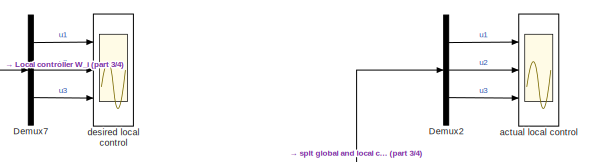
[diagram: root canvas - part 1/4, top center region]
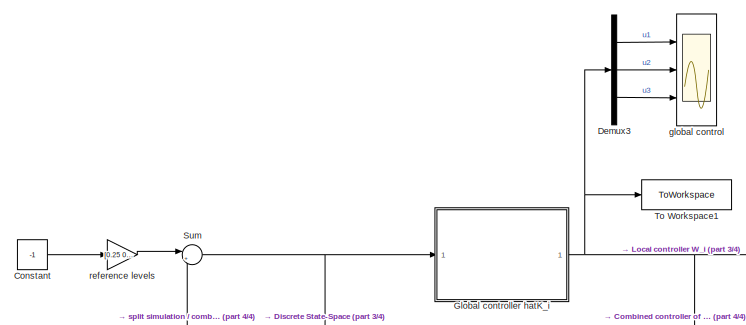
[diagram: root canvas - part 2/4, top left region]
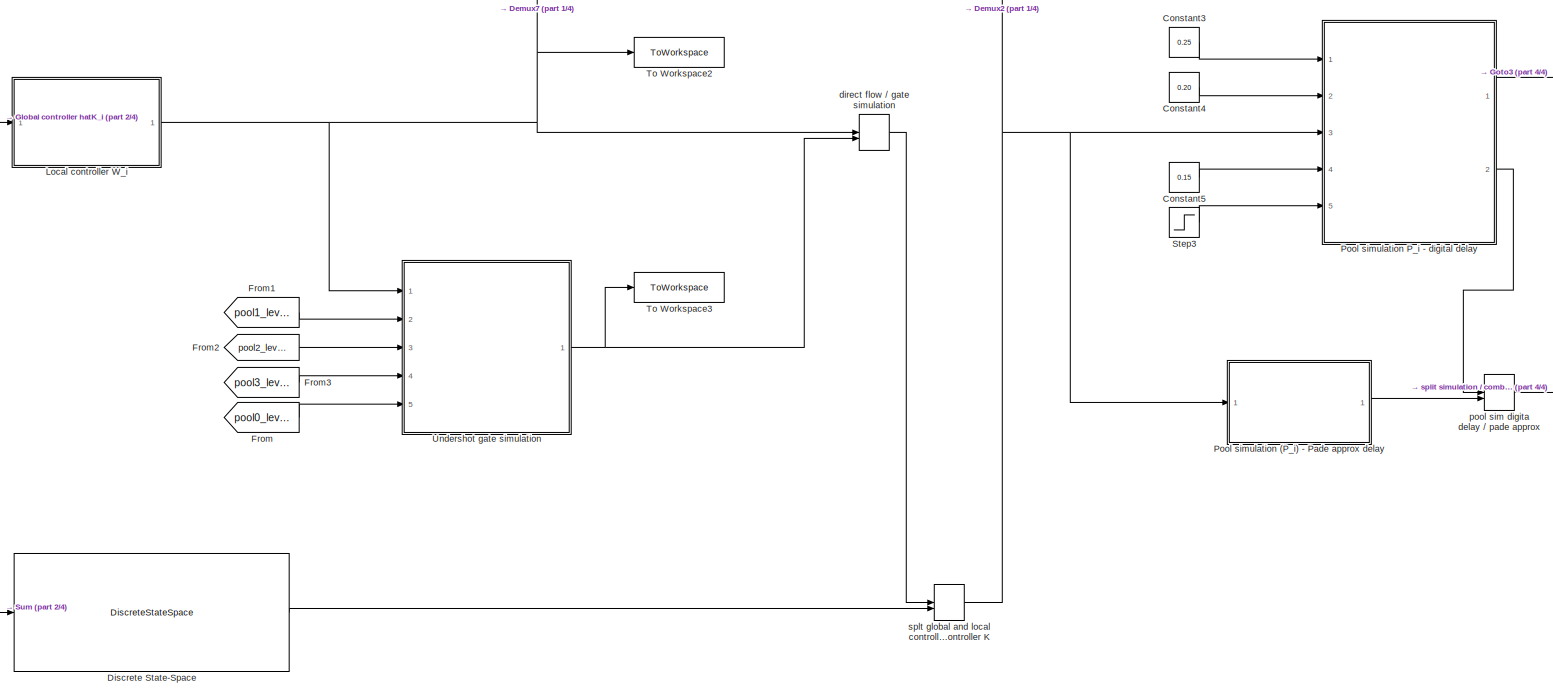
[diagram: root canvas - part 3/4, central region]
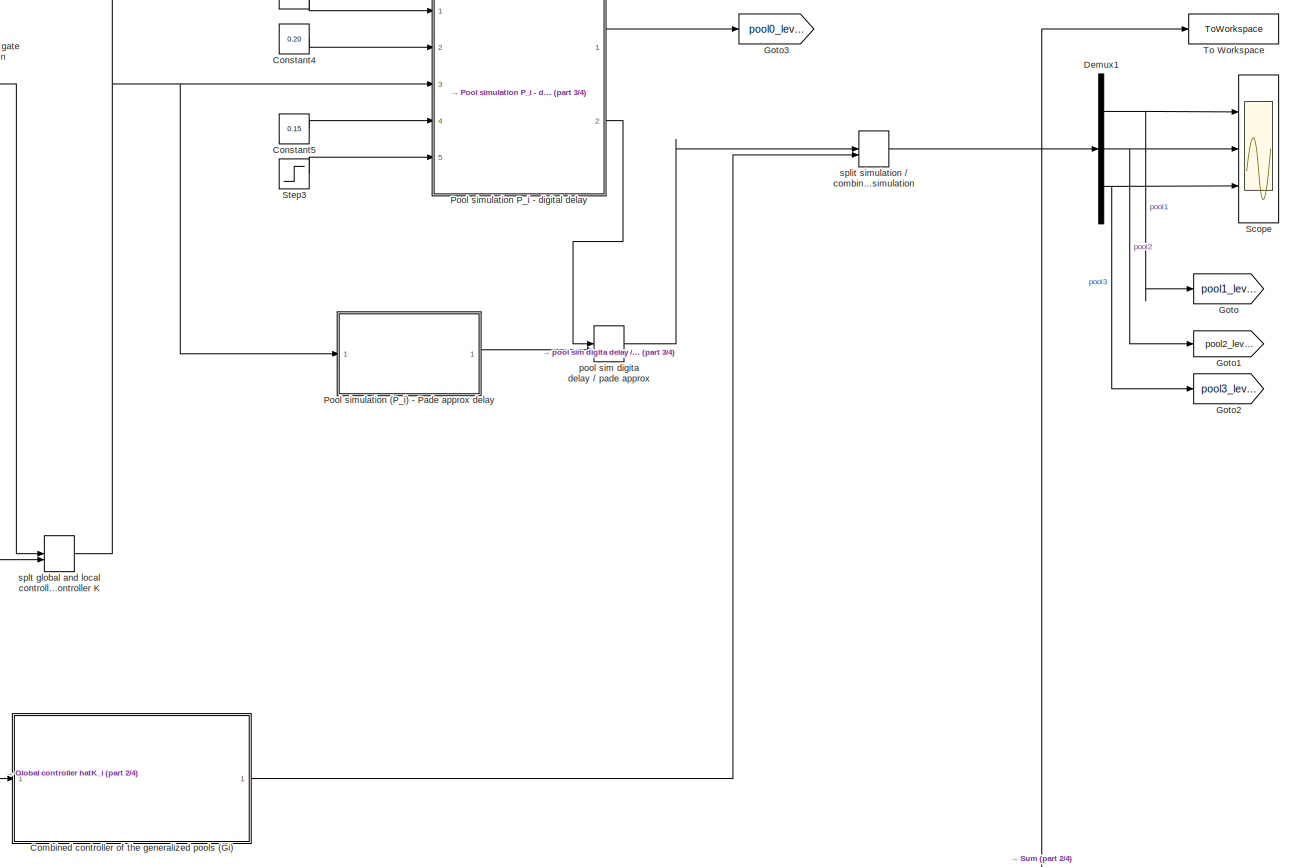
[diagram: root canvas - part 4/4, middle right region]
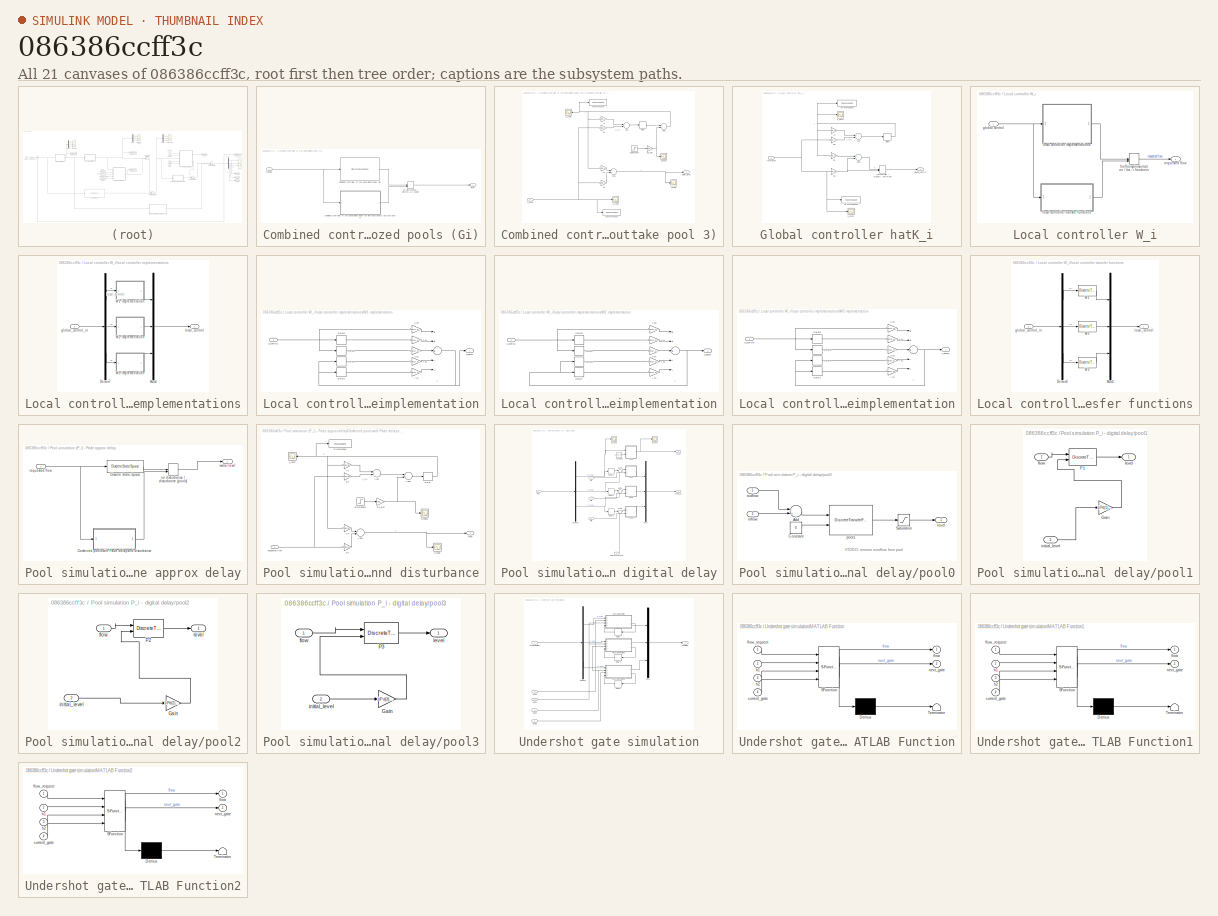
[diagram: thumbnail index - all 21 canvases of the model, root first then tree order]
MODEL slx_086386ccff3c
KIND model
CONFIG AbsTol = auto
CONFIG EnableMultiTasking = off
CONFIG FixedStep = 1
CONFIG MaxStep = auto
CONFIG MinStep = auto
CONFIG RelTol = 1e-3
CONFIG SampleTimeConstraint = Unconstrained
CONFIG Solver = FixedStepDiscrete
CONFIG SolverName = FixedStepDiscrete
CONFIG StartTime = 0.0
CONFIG StopTime = 60*30
BLOCK [SubSystem] Combined controller of the generalized pools (Gi)
  Ports = [1, 1]
  RequestExecContextInheritance = off
BLOCK [DiscreteStateSpace] Combined controller of the generalized pools (Gi)/Combined controller of the generalized pools (Gi)
  A = comb_plant_disc.A
  B = comb_plant_disc.B
  C = comb_plant_disc.C
  D = comb_plant_disc.D
  SampleTime = -1
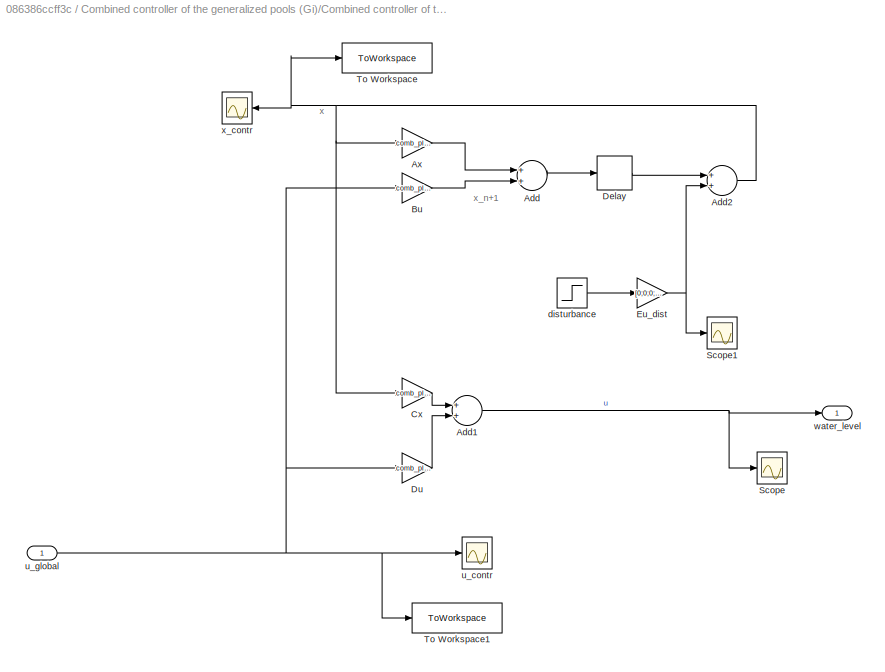
BLOCK [SubSystem] Combined controller of the generalized pools (Gi)/Combined controller of the generalized pools (Gi) with disturbance (outtake pool 3)
  Ports = [1, 1]
  RequestExecContextInheritance = off
BLOCK [Sum] Combined controller of the generalized pools (Gi)/Combined controller of the generalized pools (Gi) with disturbance (outtake pool 3)/Add
  InputSameDT = off
  OutDataTypeStr = Inherit: Inherit via internal rule
  Ports = [2, 1]
  SaturateOnIntegerOverflow = off
BLOCK [Sum] Combined controller of the generalized pools (Gi)/Combined controller of the generalized pools (Gi) with disturbance (outtake pool 3)/Add1
  InputSameDT = off
  OutDataTypeStr = Inherit: Inherit via internal rule
  Ports = [2, 1]
  SaturateOnIntegerOverflow = off
BLOCK [Sum] Combined controller of the generalized pools (Gi)/Combined controller of the generalized pools (Gi) with disturbance (outtake pool 3)/Add2
  InputSameDT = off
  OutDataTypeStr = Inherit: Inherit via internal rule
  Ports = [2, 1]
  SaturateOnIntegerOverflow = off
BLOCK [Gain] Combined controller of the generalized pools (Gi)/Combined controller of the generalized pools (Gi) with disturbance (outtake pool 3)/Ax
  Gain = comb_plant_disc.A
  Multiplication = Matrix(K*u)
  OutDataTypeStr = Inherit: Inherit via internal rule
  ParamDataTypeStr = Inherit: Inherit via internal rule
  SaturateOnIntegerOverflow = off
BLOCK [Gain] Combined controller of the generalized pools (Gi)/Combined controller of the generalized pools (Gi) with disturbance (outtake pool 3)/Bu
  Gain = comb_plant_disc.B
  Multiplication = Matrix(K*u)
  OutDataTypeStr = Inherit: Inherit via internal rule
  ParamDataTypeStr = Inherit: Inherit via internal rule
  SaturateOnIntegerOverflow = off
BLOCK [Gain] Combined controller of the generalized pools (Gi)/Combined controller of the generalized pools (Gi) with disturbance (outtake pool 3)/Cx
  Gain = comb_plant_disc.C
  Multiplication = Matrix(K*u)
  OutDataTypeStr = Inherit: Inherit via internal rule
  ParamDataTypeStr = Inherit: Inherit via internal rule
  SaturateOnIntegerOverflow = off
BLOCK [Delay] Combined controller of the generalized pools (Gi)/Combined controller of the generalized pools (Gi) with disturbance (outtake pool 3)/Delay
  DelayLength = 1
  InitialCondition = [0.25;0;0;0;0.20;0;0;0;0.15;0;0;0]
  InputPortMap = u0
  Ports = [1, 1]
BLOCK [Gain] Combined controller of the generalized pools (Gi)/Combined controller of the generalized pools (Gi) with disturbance (outtake pool 3)/Du
  Gain = comb_plant_disc.D
  Multiplication = Matrix(K*u)
  OutDataTypeStr = Inherit: Inherit via internal rule
  ParamDataTypeStr = Inherit: Inherit via internal rule
  SaturateOnIntegerOverflow = off
BLOCK [Gain] Combined controller of the generalized pools (Gi)/Combined controller of the generalized pools (Gi) with disturbance (outtake pool 3)/Eu_dist
  Gain = [0;0;0;0; 0;0;0;0; 1; 0; 0; 0];
  Multiplication = Matrix(K*u)
  OutDataTypeStr = Inherit: Inherit via internal rule
  ParamDataTypeStr = Inherit: Inherit via internal rule
  SaturateOnIntegerOverflow = off
BLOCK [Scope] Combined controller of the generalized pools (Gi)/Combined controller of the generalized pools (Gi) with disturbance (outtake pool 3)/Scope
  Floating = off
  NumInputPorts = 1
  Ports = [1]
  ScopeSpecificationString = Simulink.scopes.TimeScopeBlockCfg('CurrentConfiguration', extmgr.ConfigurationSet(extmgr.Configuration('Core','General UI',true),extmgr.Configuration('Core','Source UI',true),extmgr.Configuration('Sources','WiredSimulink',true,'DataLoggingVariableName','ScopeData1'),extmgr.Configuration('Visuals','Time Domain',true,'SerializedDisplays',{struct('MinYLimReal','0.12123','MaxYLimReal','0.26431','YLabe...<+1470ch>
BLOCK [Scope] Combined controller of the generalized pools (Gi)/Combined controller of the generalized pools (Gi) with disturbance (outtake pool 3)/Scope1
  Floating = off
  NumInputPorts = 1
  Ports = [1]
  ScopeSpecificationString = Simulink.scopes.TimeScopeBlockCfg('CurrentConfiguration', extmgr.ConfigurationSet(extmgr.Configuration('Core','General UI',true),extmgr.Configuration('Core','Source UI',true),extmgr.Configuration('Sources','WiredSimulink',true,'DataLoggingVariableName','ScopeData1'),extmgr.Configuration('Visuals','Time Domain',true,'SerializedDisplays',{struct('MinYLimReal','-0.00123','MaxYLimReal','0.00014','YLab...<+1504ch>
BLOCK [ToWorkspace] Combined controller of the generalized pools (Gi)/Combined controller of the generalized pools (Gi) with disturbance (outtake pool 3)/To Workspace
  FixptAsFi = on
  MaxDataPoints = inf
  Ports = [1]
  SampleTime = -1
  SaveFormat = Timeseries
  VariableName = x_combined
BLOCK [ToWorkspace] Combined controller of the generalized pools (Gi)/Combined controller of the generalized pools (Gi) with disturbance (outtake pool 3)/To Workspace1
  FixptAsFi = on
  MaxDataPoints = inf
  Ports = [1]
  SampleTime = -1
  SaveFormat = Timeseries
  VariableName = u_combined
BLOCK [Step] Combined controller of the generalized pools (Gi)/Combined controller of the generalized pools (Gi) with disturbance (outtake pool 3)/disturbance
  After = -0.015/0.2279* 1/60
  SampleTime = 0
  Time = 100
BLOCK [Scope] Combined controller of the generalized pools (Gi)/Combined controller of the generalized pools (Gi) with disturbance (outtake pool 3)/u_contr
  Floating = off
  NumInputPorts = 1
  Ports = [1]
  ScopeSpecificationString = Simulink.scopes.TimeScopeBlockCfg('CurrentConfiguration', extmgr.ConfigurationSet(extmgr.Configuration('Core','General UI',true),extmgr.Configuration('Core','Source UI',true),extmgr.Configuration('Sources','WiredSimulink',true,'DataLoggingVariableName','ScopeData2'),extmgr.Configuration('Visuals','Time Domain',true,'SerializedDisplays',{struct('MinYLimReal','-0.22587','MaxYLimReal','-0.14109','YLa...<+1448ch>
BLOCK [Inport] Combined controller of the generalized pools (Gi)/Combined controller of the generalized pools (Gi) with disturbance (outtake pool 3)/u_global
  IconDisplay = Port number
BLOCK [Outport] Combined controller of the generalized pools (Gi)/Combined controller of the generalized pools (Gi) with disturbance (outtake pool 3)/water_level
  IconDisplay = Port number
BLOCK [Scope] Combined controller of the generalized pools (Gi)/Combined controller of the generalized pools (Gi) with disturbance (outtake pool 3)/x_contr
  Floating = off
  NumInputPorts = 1
  Ports = [1]
  ScopeSpecificationString = Simulink.scopes.TimeScopeBlockCfg('CurrentConfiguration', extmgr.ConfigurationSet(extmgr.Configuration('Core','General UI',true),extmgr.Configuration('Core','Source UI',true),extmgr.Configuration('Sources','WiredSimulink',true,'DataLoggingVariableName','ScopeData1'),extmgr.Configuration('Visuals','Time Domain',true,'SerializedDisplays',{struct('MinYLimReal','-1.45192','MaxYLimReal','0.51843','YLab...<+1509ch>
BLOCK [Outport] Combined controller of the generalized pools (Gi)/level
  IconDisplay = Port number
BLOCK [ManualSwitch] Combined controller of the generalized pools (Gi)/no disturbance // disturbance (combined local + pools)
  CurrentSetting = 0
BLOCK [Inport] Combined controller of the generalized pools (Gi)/u_global
  IconDisplay = Port number
BLOCK [Constant] Constant
  Value = -1
BLOCK [Constant] Constant3
  SampleTime = -1
  Value = 0.25
BLOCK [Constant] Constant4
  Value = 0.20
BLOCK [Constant] Constant5
  Value = 0.15
BLOCK [Demux] Demux1
  DisplayOption = bar
  Outputs = 3
  Ports = [1, 3]
BLOCK [Demux] Demux2
  DisplayOption = bar
  Outputs = 3
  Ports = [1, 3]
BLOCK [Demux] Demux3
  DisplayOption = bar
  Outputs = 3
  Ports = [1, 3]
BLOCK [Demux] Demux7
  DisplayOption = bar
  Outputs = 3
  Ports = [1, 3]
BLOCK [DiscreteStateSpace] Discrete State-Space
  A = comb_K_disc.A
  B = comb_K_disc.B
  C = comb_K_disc.C
  D = comb_K_disc.D
  SampleTime = -1
BLOCK [From] From
  GotoTag = pool0_level
BLOCK [From] From1
  GotoTag = pool1_level
BLOCK [From] From2
  GotoTag = pool2_level
BLOCK [From] From3
  GotoTag = pool3_level
BLOCK [SubSystem] Global controller hatK_i
  Ports = [1, 1]
  RequestExecContextInheritance = off
BLOCK [Sum] Global controller hatK_i/Add
  InputSameDT = off
  OutDataTypeStr = Inherit: Inherit via internal rule
  Ports = [2, 1]
  SaturateOnIntegerOverflow = off
BLOCK [Sum] Global controller hatK_i/Add1
  InputSameDT = off
  OutDataTypeStr = Inherit: Inherit via internal rule
  Ports = [2, 1]
  SaturateOnIntegerOverflow = off
BLOCK [Gain] Global controller hatK_i/Ax
  Gain = comb_contr.A
  Multiplication = Matrix(K*u)
  OutDataTypeStr = Inherit: Inherit via internal rule
  ParamDataTypeStr = Inherit: Inherit via internal rule
  SaturateOnIntegerOverflow = off
BLOCK [Gain] Global controller hatK_i/Bu
  Gain = comb_contr.B
  Multiplication = Matrix(K*u)
  OutDataTypeStr = Inherit: Inherit via internal rule
  ParamDataTypeStr = Inherit: Inherit via internal rule
  SaturateOnIntegerOverflow = off
BLOCK [Gain] Global controller hatK_i/Cx
  Gain = comb_contr.C
  Multiplication = Matrix(K*u)
  OutDataTypeStr = Inherit: Inherit via internal rule
  ParamDataTypeStr = Inherit: Inherit via internal rule
  SaturateOnIntegerOverflow = off
BLOCK [Delay] Global controller hatK_i/Delay
  DelayLength = 1
  InitialCondition = [0;0;0;0;0;0;0;0;0;0;0;0;0;0;0]
  InputPortMap = u0
  Ports = [1, 1]
BLOCK [Gain] Global controller hatK_i/Du
  Gain = comb_contr.D
  Multiplication = Matrix(K*u)
  OutDataTypeStr = Inherit: Inherit via internal rule
  ParamDataTypeStr = Inherit: Inherit via internal rule
  SaturateOnIntegerOverflow = off
BLOCK [ToWorkspace] Global controller hatK_i/To Workspace
  FixptAsFi = on
  MaxDataPoints = inf
  Ports = [1]
  SampleTime = -1
  SaveFormat = Timeseries
  VariableName = x_global_control
BLOCK [ToWorkspace] Global controller hatK_i/To Workspace1
  FixptAsFi = on
  MaxDataPoints = inf
  Ports = [1]
  SampleTime = -1
  SaveFormat = Timeseries
  VariableName = u_global_control
BLOCK [ManualSwitch] Global controller hatK_i/full controller // proportional control only
  CurrentSetting = 0
BLOCK [Outport] Global controller hatK_i/global_control
  IconDisplay = Port number
BLOCK [Inport] Global controller hatK_i/reference
  IconDisplay = Port number
BLOCK [Scope] Global controller hatK_i/u_contr
  Floating = off
  NumInputPorts = 1
  Ports = [1]
  ScopeSpecificationString = Simulink.scopes.TimeScopeBlockCfg('CurrentConfiguration', extmgr.ConfigurationSet(extmgr.Configuration('Core','General UI',true),extmgr.Configuration('Core','Source UI',true),extmgr.Configuration('Sources','WiredSimulink',true,'DataLoggingVariableName','ScopeData2'),extmgr.Configuration('Visuals','Time Domain',true,'SerializedDisplays',{struct('MinYLimReal','-0.22587','MaxYLimReal','-0.14109','YLa...<+1430ch>
BLOCK [Scope] Global controller hatK_i/x_contr
  Floating = off
  NumInputPorts = 1
  Ports = [1]
  ScopeSpecificationString = Simulink.scopes.TimeScopeBlockCfg('CurrentConfiguration', extmgr.ConfigurationSet(extmgr.Configuration('Core','General UI',true),extmgr.Configuration('Core','Source UI',true),extmgr.Configuration('Sources','WiredSimulink',true,'DataLoggingVariableName','ScopeData1'),extmgr.Configuration('Visuals','Time Domain',true,'SerializedDisplays',{struct('MinYLimReal','-0.0000000000000008','MaxYLimReal','0.0...<+1630ch>
BLOCK [Goto] Goto
  GotoTag = pool1_level
BLOCK [Goto] Goto1
  GotoTag = pool2_level
BLOCK [Goto] Goto2
  GotoTag = pool3_level
BLOCK [Goto] Goto3
  GotoTag = pool0_level
BLOCK [SubSystem] Local controller W_i
  Ports = [1, 1]
  RequestExecContextInheritance = off
BLOCK [ManualSwitch] Local controller W_i/firefly implementation // transfer functions
  CurrentSetting = 0
BLOCK [Inport] Local controller W_i/global control
  IconDisplay = Port number
BLOCK [SubSystem] Local controller W_i/local controller implementations
  Ports = [1, 1]
  RequestExecContextInheritance = off
BLOCK [Demux] Local controller W_i/local controller implementations/Demux7
  DisplayOption = bar
  Outputs = 3
  Ports = [1, 3]
BLOCK [Mux] Local controller W_i/local controller implementations/Mux4
  DisplayOption = bar
  Inputs = 3
  Ports = [3, 1]
BLOCK [SubSystem] Local controller W_i/local controller implementations/W1 implementation
  Ports = [1, 1]
  RequestExecContextInheritance = off
BLOCK [Delay] Local controller W_i/local controller implementations/W1 implementation/Delay5
  DelayLength = 1
  InputPortMap = u0
  Ports = [1, 1]
BLOCK [Delay] Local controller W_i/local controller implementations/W1 implementation/Delay6
  InputPortMap = u0
  Ports = [1, 1]
BLOCK [Delay] Local controller W_i/local controller implementations/W1 implementation/Delay7
  InputPortMap = u0
  Ports = [1, 1]
BLOCK [Delay] Local controller W_i/local controller implementations/W1 implementation/Delay9
  DelayLength = 1
  InputPortMap = u0
  Ports = [1, 1]
BLOCK [Gain] Local controller W_i/local controller implementations/W1 implementation/u z0
  Gain = Wd{1}.Numerator{1}(1)
  OutDataTypeStr = Inherit: Inherit via internal rule
  ParamDataTypeStr = Inherit: Inherit via internal rule
  SaturateOnIntegerOverflow = off
BLOCK [Gain] Local controller W_i/local controller implementations/W1 implementation/u z1
  Gain = Wd{1}.Numerator{1}(2)
  OutDataTypeStr = Inherit: Inherit via internal rule
  ParamDataTypeStr = Inherit: Inherit via internal rule
  SaturateOnIntegerOverflow = off
BLOCK [Gain] Local controller W_i/local controller implementations/W1 implementation/u z2
  Gain = Wd{1}.Numerator{1}(3)
  OutDataTypeStr = Inherit: Inherit via internal rule
  ParamDataTypeStr = Inherit: Inherit via internal rule
  SaturateOnIntegerOverflow = off
BLOCK [Inport] Local controller W_i/local controller implementations/W1 implementation/u_control1
  IconDisplay = Port number
BLOCK [Outport] Local controller W_i/local controller implementations/W1 implementation/u_gate1
  IconDisplay = Port number
BLOCK [Sum] Local controller W_i/local controller implementations/W1 implementation/y
  InputSameDT = off
  Inputs = +++--
  OutDataTypeStr = Inherit: Inherit via internal rule
  Ports = [5, 1]
  SaturateOnIntegerOverflow = off
BLOCK [Gain] Local controller W_i/local controller implementations/W1 implementation/y z1
  Gain = Wd{1}.Denominator{1}(2)
  OutDataTypeStr = Inherit: Inherit via internal rule
  ParamDataTypeStr = Inherit: Inherit via internal rule
  SaturateOnIntegerOverflow = off
BLOCK [Gain] Local controller W_i/local controller implementations/W1 implementation/y z2
  Gain = Wd{1}.Denominator{1}(3)
  OutDataTypeStr = Inherit: Inherit via internal rule
  ParamDataTypeStr = Inherit: Inherit via internal rule
  SaturateOnIntegerOverflow = off
BLOCK [SubSystem] Local controller W_i/local controller implementations/W2 implementation
  Ports = [1, 1]
  RequestExecContextInheritance = off
BLOCK [Delay] Local controller W_i/local controller implementations/W2 implementation/Delay5
  DelayLength = 1
  InputPortMap = u0
  Ports = [1, 1]
BLOCK [Delay] Local controller W_i/local controller implementations/W2 implementation/Delay6
  InputPortMap = u0
  Ports = [1, 1]
BLOCK [Delay] Local controller W_i/local controller implementations/W2 implementation/Delay7
  InputPortMap = u0
  Ports = [1, 1]
BLOCK [Delay] Local controller W_i/local controller implementations/W2 implementation/Delay9
  DelayLength = 1
  InputPortMap = u0
  Ports = [1, 1]
BLOCK [Gain] Local controller W_i/local controller implementations/W2 implementation/u z0
  Gain = Wd{2}.Numerator{1}(1)
  OutDataTypeStr = Inherit: Inherit via internal rule
  ParamDataTypeStr = Inherit: Inherit via internal rule
  SaturateOnIntegerOverflow = off
BLOCK [Gain] Local controller W_i/local controller implementations/W2 implementation/u z1
  Gain = Wd{2}.Numerator{1}(2)
  OutDataTypeStr = Inherit: Inherit via internal rule
  ParamDataTypeStr = Inherit: Inherit via internal rule
  SaturateOnIntegerOverflow = off
BLOCK [Gain] Local controller W_i/local controller implementations/W2 implementation/u z2
  Gain = Wd{2}.Numerator{1}(3)
  OutDataTypeStr = Inherit: Inherit via internal rule
  ParamDataTypeStr = Inherit: Inherit via internal rule
  SaturateOnIntegerOverflow = off
BLOCK [Inport] Local controller W_i/local controller implementations/W2 implementation/u_contro2
  IconDisplay = Port number
BLOCK [Outport] Local controller W_i/local controller implementations/W2 implementation/u_gate2
  IconDisplay = Port number
BLOCK [Sum] Local controller W_i/local controller implementations/W2 implementation/y
  InputSameDT = off
  Inputs = +++--
  OutDataTypeStr = Inherit: Inherit via internal rule
  Ports = [5, 1]
  SaturateOnIntegerOverflow = off
BLOCK [Gain] Local controller W_i/local controller implementations/W2 implementation/y z1
  Gain = Wd{2}.Denominator{1}(2)
  OutDataTypeStr = Inherit: Inherit via internal rule
  ParamDataTypeStr = Inherit: Inherit via internal rule
  SaturateOnIntegerOverflow = off
BLOCK [Gain] Local controller W_i/local controller implementations/W2 implementation/y z2
  Gain = Wd{2}.Denominator{1}(3)
  OutDataTypeStr = Inherit: Inherit via internal rule
  ParamDataTypeStr = Inherit: Inherit via internal rule
  SaturateOnIntegerOverflow = off
BLOCK [SubSystem] Local controller W_i/local controller implementations/W3 implementation
  Ports = [1, 1]
  RequestExecContextInheritance = off
BLOCK [Delay] Local controller W_i/local controller implementations/W3 implementation/Delay5
  DelayLength = 1
  InputPortMap = u0
  Ports = [1, 1]
BLOCK [Delay] Local controller W_i/local controller implementations/W3 implementation/Delay6
  InputPortMap = u0
  Ports = [1, 1]
BLOCK [Delay] Local controller W_i/local controller implementations/W3 implementation/Delay7
  InputPortMap = u0
  Ports = [1, 1]
BLOCK [Delay] Local controller W_i/local controller implementations/W3 implementation/Delay9
  DelayLength = 1
  InputPortMap = u0
  Ports = [1, 1]
BLOCK [Gain] Local controller W_i/local controller implementations/W3 implementation/u z0
  Gain = Wd{3}.Numerator{1}(1)
  OutDataTypeStr = Inherit: Inherit via internal rule
  ParamDataTypeStr = Inherit: Inherit via internal rule
  SaturateOnIntegerOverflow = off
BLOCK [Gain] Local controller W_i/local controller implementations/W3 implementation/u z1
  Gain = Wd{3}.Numerator{1}(2)
  OutDataTypeStr = Inherit: Inherit via internal rule
  ParamDataTypeStr = Inherit: Inherit via internal rule
  SaturateOnIntegerOverflow = off
BLOCK [Gain] Local controller W_i/local controller implementations/W3 implementation/u z2
  Gain = Wd{3}.Numerator{1}(3)
  OutDataTypeStr = Inherit: Inherit via internal rule
  ParamDataTypeStr = Inherit: Inherit via internal rule
  SaturateOnIntegerOverflow = off
BLOCK [Inport] Local controller W_i/local controller implementations/W3 implementation/u_control3
  IconDisplay = Port number
BLOCK [Outport] Local controller W_i/local controller implementations/W3 implementation/u_gate3
  IconDisplay = Port number
BLOCK [Sum] Local controller W_i/local controller implementations/W3 implementation/y
  InputSameDT = off
  Inputs = +++--
  OutDataTypeStr = Inherit: Inherit via internal rule
  Ports = [5, 1]
  SaturateOnIntegerOverflow = off
BLOCK [Gain] Local controller W_i/local controller implementations/W3 implementation/y z1
  Gain = Wd{3}.Denominator{1}(2)
  OutDataTypeStr = Inherit: Inherit via internal rule
  ParamDataTypeStr = Inherit: Inherit via internal rule
  SaturateOnIntegerOverflow = off
BLOCK [Gain] Local controller W_i/local controller implementations/W3 implementation/y z2
  Gain = Wd{3}.Denominator{1}(3)
  OutDataTypeStr = Inherit: Inherit via internal rule
  ParamDataTypeStr = Inherit: Inherit via internal rule
  SaturateOnIntegerOverflow = off
BLOCK [Inport] Local controller W_i/local controller implementations/global_control_in
  IconDisplay = Port number
BLOCK [Outport] Local controller W_i/local controller implementations/local_control
  IconDisplay = Port number
BLOCK [SubSystem] Local controller W_i/local controller transfer functions
  Ports = [1, 1]
  RequestExecContextInheritance = off
BLOCK [Demux] Local controller W_i/local controller transfer functions/Demux4
  DisplayOption = bar
  Outputs = 3
  Ports = [1, 3]
BLOCK [Mux] Local controller W_i/local controller transfer functions/Mux3
  DisplayOption = bar
  Inputs = 3
  Ports = [3, 1]
BLOCK [DiscreteTransferFcn] Local controller W_i/local controller transfer functions/W1
  Denominator = Wd{1}.Denominator{1}
  InputPortMap = u0
  Numerator = Wd{1}.Numerator{1}
  Ports = [1, 1]
BLOCK [DiscreteTransferFcn] Local controller W_i/local controller transfer functions/W2
  Denominator = Wd{2}.Denominator{1}
  InputPortMap = u0
  Numerator = Wd{2}.Numerator{1}
  Ports = [1, 1]
BLOCK [DiscreteTransferFcn] Local controller W_i/local controller transfer functions/W3
  Denominator = Wd{3}.Denominator{1}
  InputPortMap = u0
  Numerator = Wd{3}.Numerator{1}
  Ports = [1, 1]
BLOCK [Inport] Local controller W_i/local controller transfer functions/global_control_in
  IconDisplay = Port number
BLOCK [Outport] Local controller W_i/local controller transfer functions/local_control
  IconDisplay = Port number
BLOCK [Outport] Local controller W_i/requested flow
  IconDisplay = Port number
BLOCK [SubSystem] Pool simulation (P_i) - Pade approx delay
  Ports = [1, 1]
  RequestExecContextInheritance = off
BLOCK [SubSystem] Pool simulation (P_i) - Pade approx delay/Combined pools with Pade delay and disturbance
  Ports = [1, 1]
  RequestExecContextInheritance = off
BLOCK [Sum] Pool simulation (P_i) - Pade approx delay/Combined pools with Pade delay and disturbance/Add
  InputSameDT = off
  OutDataTypeStr = Inherit: Inherit via internal rule
  Ports = [2, 1]
  SaturateOnIntegerOverflow = off
BLOCK [Sum] Pool simulation (P_i) - Pade approx delay/Combined pools with Pade delay and disturbance/Add1
  InputSameDT = off
  OutDataTypeStr = Inherit: Inherit via internal rule
  Ports = [2, 1]
  SaturateOnIntegerOverflow = off
BLOCK [Sum] Pool simulation (P_i) - Pade approx delay/Combined pools with Pade delay and disturbance/Add2
  InputSameDT = off
  OutDataTypeStr = Inherit: Inherit via internal rule
  Ports = [2, 1]
  SaturateOnIntegerOverflow = off
BLOCK [Gain] Pool simulation (P_i) - Pade approx delay/Combined pools with Pade delay and disturbance/Ax
  Gain = comb_Pool_disc.A
  Multiplication = Matrix(K*u)
  OutDataTypeStr = Inherit: Inherit via internal rule
  ParamDataTypeStr = Inherit: Inherit via internal rule
  SaturateOnIntegerOverflow = off
BLOCK [Gain] Pool simulation (P_i) - Pade approx delay/Combined pools with Pade delay and disturbance/Bu
  Gain = comb_Pool_disc.B
  Multiplication = Matrix(K*u)
  OutDataTypeStr = Inherit: Inherit via internal rule
  ParamDataTypeStr = Inherit: Inherit via internal rule
  SaturateOnIntegerOverflow = off
BLOCK [Gain] Pool simulation (P_i) - Pade approx delay/Combined pools with Pade delay and disturbance/Cx
  Gain = comb_Pool_disc.C
  Multiplication = Matrix(K*u)
  OutDataTypeStr = Inherit: Inherit via internal rule
  ParamDataTypeStr = Inherit: Inherit via internal rule
  SaturateOnIntegerOverflow = off
BLOCK [Delay] Pool simulation (P_i) - Pade approx delay/Combined pools with Pade delay and disturbance/Delay
  DelayLength = 1
  InitialCondition = [0.25;0;0.2;0;0.15;0]
  InputPortMap = u0
  Ports = [1, 1]
BLOCK [Gain] Pool simulation (P_i) - Pade approx delay/Combined pools with Pade delay and disturbance/Du
  Gain = comb_Pool_disc.D
  Multiplication = Matrix(K*u)
  OutDataTypeStr = Inherit: Inherit via internal rule
  ParamDataTypeStr = Inherit: Inherit via internal rule
  SaturateOnIntegerOverflow = off
BLOCK [Gain] Pool simulation (P_i) - Pade approx delay/Combined pools with Pade delay and disturbance/Eu_dist
  Gain = [0; 0; 0; 0; 1; 0];
  Multiplication = Matrix(K*u)
  OutDataTypeStr = Inherit: Inherit via internal rule
  ParamDataTypeStr = Inherit: Inherit via internal rule
  SaturateOnIntegerOverflow = off
BLOCK [Scope] Pool simulation (P_i) - Pade approx delay/Combined pools with Pade delay and disturbance/Scope
  Floating = off
  NumInputPorts = 1
  Ports = [1]
  ScopeSpecificationString = Simulink.scopes.TimeScopeBlockCfg('CurrentConfiguration', extmgr.ConfigurationSet(extmgr.Configuration('Core','General UI',true),extmgr.Configuration('Core','Source UI',true),extmgr.Configuration('Sources','WiredSimulink',true,'DataLoggingVariableName','ScopeData1'),extmgr.Configuration('Visuals','Time Domain',true,'SerializedDisplays',{struct('MinYLimReal','0.12122','MaxYLimReal','0.26431','YLabe...<+1401ch>
BLOCK [Scope] Pool simulation (P_i) - Pade approx delay/Combined pools with Pade delay and disturbance/Scope1
  Floating = off
  NumInputPorts = 1
  Ports = [1]
  ScopeSpecificationString = Simulink.scopes.TimeScopeBlockCfg('CurrentConfiguration', extmgr.ConfigurationSet(extmgr.Configuration('Core','General UI',true),extmgr.Configuration('Core','Source UI',true),extmgr.Configuration('Sources','WiredSimulink',true,'DataLoggingVariableName','ScopeData2'),extmgr.Configuration('Visuals','Time Domain',true,'SerializedDisplays',{struct('MinYLimReal','-0.00123','MaxYLimReal','0.00014','YLab...<+1504ch>
BLOCK [ToWorkspace] Pool simulation (P_i) - Pade approx delay/Combined pools with Pade delay and disturbance/To Workspace
  FixptAsFi = on
  MaxDataPoints = inf
  Ports = [1]
  SampleTime = -1
  SaveFormat = Timeseries
  VariableName = x_pools
BLOCK [Step] Pool simulation (P_i) - Pade approx delay/Combined pools with Pade delay and disturbance/disturbance
  After = -0.015/0.2279* 1/60
  SampleTime = 0
  Time = 100
BLOCK [Outport] Pool simulation (P_i) - Pade approx delay/Combined pools with Pade delay and disturbance/level
  IconDisplay = Port number
BLOCK [Inport] Pool simulation (P_i) - Pade approx delay/Combined pools with Pade delay and disturbance/requested flow
  IconDisplay = Port number
BLOCK [Scope] Pool simulation (P_i) - Pade approx delay/Combined pools with Pade delay and disturbance/x_contr
  Floating = off
  NumInputPorts = 1
  Ports = [1]
  ScopeSpecificationString = Simulink.scopes.TimeScopeBlockCfg('CurrentConfiguration', extmgr.ConfigurationSet(extmgr.Configuration('Core','General UI',true),extmgr.Configuration('Core','Source UI',true),extmgr.Configuration('Sources','WiredSimulink',true,'DataLoggingVariableName','ScopeData4'),extmgr.Configuration('Visuals','Time Domain',true,'SerializedDisplays',{struct('MinYLimReal','-1.45192','MaxYLimReal','0.51843','YLab...<+1509ch>
BLOCK [DiscreteStateSpace] Pool simulation (P_i) - Pade approx delay/Discrete State-Space
  A = comb_Pool_disc.A
  B = comb_Pool_disc.B
  C = comb_Pool_disc.C
  D = comb_Pool_disc.D
  SampleTime = -1
BLOCK [ManualSwitch] Pool simulation (P_i) - Pade approx delay/no disturbance // disturbance (pools)
  CurrentSetting = 0
BLOCK [Inport] Pool simulation (P_i) - Pade approx delay/requested flow
  IconDisplay = Port number
BLOCK [Outport] Pool simulation (P_i) - Pade approx delay/water level
  IconDisplay = Port number
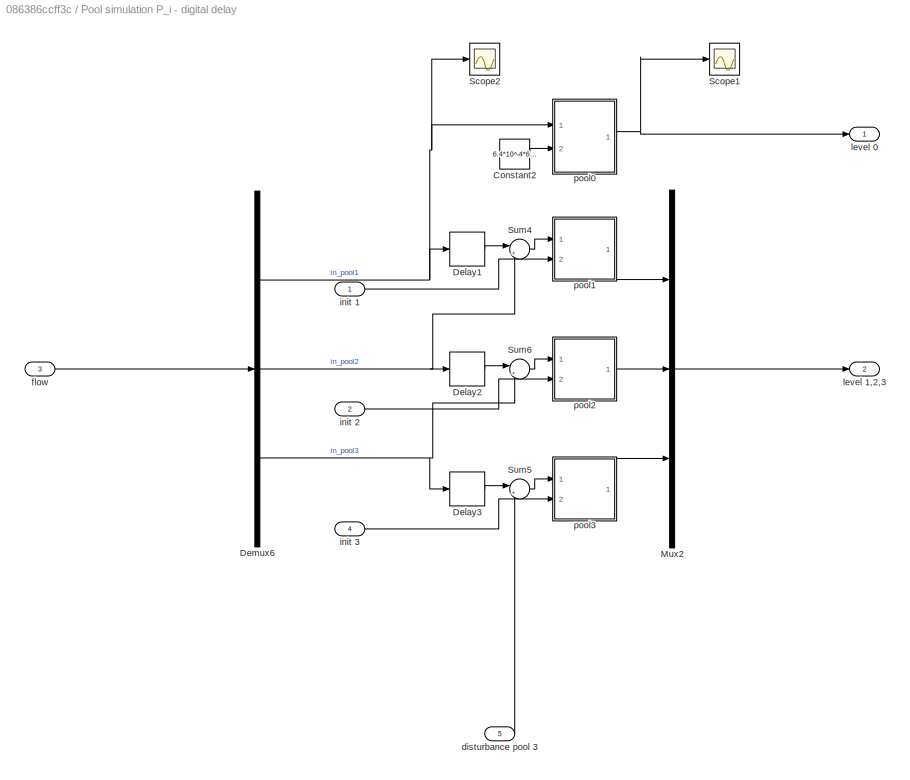
BLOCK [SubSystem] Pool simulation P_i - digital delay
  Ports = [5, 2]
  RequestExecContextInheritance = off
BLOCK [Constant] Pool simulation P_i - digital delay/Constant2
  Value = 6.4*10^-4*60*10
BLOCK [Delay] Pool simulation P_i - digital delay/Delay1
  DelayLength = ddelay(1)
  InputPortMap = u0
  Ports = [1, 1]
BLOCK [Delay] Pool simulation P_i - digital delay/Delay2
  DelayLength = ddelay(2)
  InputPortMap = u0
  Ports = [1, 1]
BLOCK [Delay] Pool simulation P_i - digital delay/Delay3
  DelayLength = ddelay(3)
  InputPortMap = u0
  Ports = [1, 1]
BLOCK [Demux] Pool simulation P_i - digital delay/Demux6
  DisplayOption = bar
  Outputs = 3
  Ports = [1, 3]
BLOCK [Mux] Pool simulation P_i - digital delay/Mux2
  DisplayOption = bar
  Inputs = 3
  Ports = [3, 1]
BLOCK [Scope] Pool simulation P_i - digital delay/Scope1
  Floating = off
  NumInputPorts = 1
  Ports = [1]
  ScopeSpecificationString = Simulink.scopes.TimeScopeBlockCfg('CurrentConfiguration', extmgr.ConfigurationSet(extmgr.Configuration('Core','General UI',true),extmgr.Configuration('Core','Source UI',true),extmgr.Configuration('Sources','WiredSimulink',true,'DataLoggingVariableName','ScopeData2'),extmgr.Configuration('Visuals','Time Domain',true,'SerializedDisplays',{struct('MinYLimReal','-0.0375','MaxYLimReal','0.3375','YLabel...<+1358ch>
BLOCK [Scope] Pool simulation P_i - digital delay/Scope2
  Floating = off
  NumInputPorts = 1
  Ports = [1]
  ScopeSpecificationString = Simulink.scopes.TimeScopeBlockCfg('CurrentConfiguration', extmgr.ConfigurationSet(extmgr.Configuration('Core','General UI',true),extmgr.Configuration('Core','Source UI',true),extmgr.Configuration('Sources','WiredSimulink',true,'DataLoggingVariableName','ScopeData3'),extmgr.Configuration('Visuals','Time Domain',true,'SerializedDisplays',{struct('MinYLimReal','-0.02371','MaxYLimReal','0.12911','YLab...<+1367ch>
BLOCK [Sum] Pool simulation P_i - digital delay/Sum4
  IconShape = round
  InputSameDT = off
  Inputs = |+-
  OutDataTypeStr = Inherit: Inherit via internal rule
  Ports = [2, 1]
  SaturateOnIntegerOverflow = off
BLOCK [Sum] Pool simulation P_i - digital delay/Sum5
  IconShape = round
  InputSameDT = off
  Inputs = |++
  OutDataTypeStr = Inherit: Inherit via internal rule
  Ports = [2, 1]
  SaturateOnIntegerOverflow = off
BLOCK [Sum] Pool simulation P_i - digital delay/Sum6
  IconShape = round
  InputSameDT = off
  Inputs = |+-
  OutDataTypeStr = Inherit: Inherit via internal rule
  Ports = [2, 1]
  SaturateOnIntegerOverflow = off
BLOCK [Inport] Pool simulation P_i - digital delay/disturbance pool 3
  IconDisplay = Port number
  Port = 5
BLOCK [Inport] Pool simulation P_i - digital delay/flow
  IconDisplay = Port number
  Port = 3
BLOCK [Inport] Pool simulation P_i - digital delay/init 1
  IconDisplay = Port number
BLOCK [Inport] Pool simulation P_i - digital delay/init 2
  IconDisplay = Port number
  Port = 2
BLOCK [Inport] Pool simulation P_i - digital delay/init 3
  IconDisplay = Port number
  Port = 4
BLOCK [Outport] Pool simulation P_i - digital delay/level 0
  IconDisplay = Port number
BLOCK [Outport] Pool simulation P_i - digital delay/level 1,2,3
  IconDisplay = Port number
  Port = 2
BLOCK [SubSystem] Pool simulation P_i - digital delay/pool0
  Ports = [2, 1]
  RequestExecContextInheritance = off
BLOCK [Sum] Pool simulation P_i - digital delay/pool0/Add
  InputSameDT = off
  Inputs = -+
  OutDataTypeStr = Inherit: Inherit via internal rule
  Ports = [2, 1]
  SaturateOnIntegerOverflow = off
BLOCK [Constant] Pool simulation P_i - digital delay/pool0/Constant
  Value = 0
BLOCK [Saturate] Pool simulation P_i - digital delay/pool0/Saturation
  InputPortMap = u0
  Ports = [1, 1]
  UpperLimit = 0.3
BLOCK [Inport] Pool simulation P_i - digital delay/pool0/inflow
  IconDisplay = Port number
  Port = 2
BLOCK [Outport] Pool simulation P_i - digital delay/pool0/level
  IconDisplay = Port number
BLOCK [Inport] Pool simulation P_i - digital delay/pool0/outflow
  IconDisplay = Port number
BLOCK [DiscreteTransferFcn] Pool simulation P_i - digital delay/pool0/pool1
  Denominator = Pd0.Denominator{1}
  InitialStatesSource = Input port
  InputPortMap = u0,p5
  Numerator = Pd0.Numerator{1}
  Ports = [2, 1]
BLOCK [SubSystem] Pool simulation P_i - digital delay/pool1
  Ports = [2, 1]
  RequestExecContextInheritance = off
BLOCK [Gain] Pool simulation P_i - digital delay/pool1/Gain
  Gain = 1/Pd{1}.Numerator{1}(2)
  OutDataTypeStr = Inherit: Inherit via internal rule
  ParamDataTypeStr = Inherit: Inherit via internal rule
  SaturateOnIntegerOverflow = off
BLOCK [DiscreteTransferFcn] Pool simulation P_i - digital delay/pool1/P1
  Denominator = Pd{1}.Denominator{1}
  InitialStatesSource = Input port
  InputPortMap = u0,p5
  Numerator = Pd{1}.Numerator{1}
  Ports = [2, 1]
BLOCK [Inport] Pool simulation P_i - digital delay/pool1/flow
  IconDisplay = Port number
BLOCK [Inport] Pool simulation P_i - digital delay/pool1/initial_level 
  IconDisplay = Port number
  Port = 2
BLOCK [Outport] Pool simulation P_i - digital delay/pool1/level
  IconDisplay = Port number
BLOCK [SubSystem] Pool simulation P_i - digital delay/pool2
  Ports = [2, 1]
  RequestExecContextInheritance = off
BLOCK [Gain] Pool simulation P_i - digital delay/pool2/Gain
  Gain = 1/Pd{2}.Numerator{1}(2)
  OutDataTypeStr = Inherit: Inherit via internal rule
  ParamDataTypeStr = Inherit: Inherit via internal rule
  SaturateOnIntegerOverflow = off
BLOCK [DiscreteTransferFcn] Pool simulation P_i - digital delay/pool2/P2
  Denominator = Pd{2}.Denominator{1}
  InitialStatesSource = Input port
  InputPortMap = u0,p5
  Numerator = Pd{2}.Numerator{1}
  Ports = [2, 1]
BLOCK [Inport] Pool simulation P_i - digital delay/pool2/flow
  IconDisplay = Port number
BLOCK [Inport] Pool simulation P_i - digital delay/pool2/initial_level
  IconDisplay = Port number
  Port = 2
BLOCK [Outport] Pool simulation P_i - digital delay/pool2/level
  IconDisplay = Port number
BLOCK [SubSystem] Pool simulation P_i - digital delay/pool3
  Ports = [2, 1]
  RequestExecContextInheritance = off
BLOCK [Gain] Pool simulation P_i - digital delay/pool3/Gain
  Gain = 1/Pd{3}.Numerator{1}(2)
  OutDataTypeStr = Inherit: Inherit via internal rule
  ParamDataTypeStr = Inherit: Inherit via internal rule
  SaturateOnIntegerOverflow = off
BLOCK [DiscreteTransferFcn] Pool simulation P_i - digital delay/pool3/P3
  Denominator = Pd{3}.Denominator{1}
  InitialStatesSource = Input port
  InputPortMap = u0,p5
  Numerator = Pd{3}.Numerator{1}
  Ports = [2, 1]
BLOCK [Inport] Pool simulation P_i - digital delay/pool3/flow
  IconDisplay = Port number
BLOCK [Inport] Pool simulation P_i - digital delay/pool3/initial_level
  IconDisplay = Port number
  Port = 2
BLOCK [Outport] Pool simulation P_i - digital delay/pool3/level
  IconDisplay = Port number
BLOCK [Scope] Scope
  Floating = off
  NumInputPorts = 3
  Ports = [3]
  ScopeSpecificationString = Simulink.scopes.TimeScopeBlockCfg('CurrentConfiguration', extmgr.ConfigurationSet(extmgr.Configuration('Core','General UI',true),extmgr.Configuration('Core','Source UI',true),extmgr.Configuration('Sources','WiredSimulink',true),extmgr.Configuration('Visuals','Time Domain',true,'SerializedDisplays',{struct('MinYLimReal','0.12122','MaxYLimReal','0.26431','YLabelReal','','MinYLimMag','0.12122','MaxYL...<+1390ch>
BLOCK [Step] Step3
  After = -0.015
  SampleTime = 0
  Time = 100
BLOCK [Sum] Sum
  IconShape = round
  InputSameDT = off
  Inputs = |++
  OutDataTypeStr = Inherit: Inherit via internal rule
  Ports = [2, 1]
  SaturateOnIntegerOverflow = off
BLOCK [ToWorkspace] To Workspace
  FixptAsFi = on
  MaxDataPoints = inf
  Ports = [1]
  SampleTime = -1
  SaveFormat = Timeseries
  VariableName = levels
BLOCK [ToWorkspace] To Workspace1
  FixptAsFi = on
  MaxDataPoints = inf
  Ports = [1]
  SampleTime = -1
  SaveFormat = Timeseries
  VariableName = u_global
BLOCK [ToWorkspace] To Workspace2
  FixptAsFi = on
  MaxDataPoints = inf
  Ports = [1]
  SampleTime = -1
  SaveFormat = Timeseries
  VariableName = u_local
BLOCK [ToWorkspace] To Workspace3
  FixptAsFi = on
  MaxDataPoints = inf
  Ports = [1]
  SampleTime = -1
  SaveFormat = Timeseries
  VariableName = u_local_restricted
BLOCK [SubSystem] Undershot gate simulation
  Ports = [5, 1]
  RequestExecContextInheritance = off
BLOCK [Delay] Undershot gate simulation/Delay
  DelayLength = 1
  InputPortMap = u0
  Ports = [1, 1]
BLOCK [Delay] Undershot gate simulation/Delay4
  DelayLength = 1
  InputPortMap = u0
  Ports = [1, 1]
BLOCK [Delay] Undershot gate simulation/Delay5
  DelayLength = 1
  InputPortMap = u0
  Ports = [1, 1]
BLOCK [Demux] Undershot gate simulation/Demux4
  DisplayOption = bar
  Outputs = 3
  Ports = [1, 3]
BLOCK [SubSystem] Undershot gate simulation/MATLAB Function
  ErrorFcn = Stateflow.Translate.translate
  PermitHierarchicalResolution = ExplicitOnly
  Ports = [4, 2]
  RequestExecContextInheritance = off
  SFBlockType = MATLAB Function
  TreatAsAtomicUnit = on
BLOCK [Demux] Undershot gate simulation/MATLAB Function/ Demux 
  Outputs = 1
  Ports = [1, 1]
BLOCK [S-Function] Undershot gate simulation/MATLAB Function/ SFunction 
  EnableBusSupport = on
  FunctionName = sf_sfun
  PortCounts = [4 3]
  Ports = [4, 3]
  SFcnIsStateOwnerBlock = off
  SFunctionDeploymentMode = off
  Tag = Stateflow S-Function 2
BLOCK [Terminator] Undershot gate simulation/MATLAB Function/ Terminator 
BLOCK [Inport] Undershot gate simulation/MATLAB Function/current_gate
  IconDisplay = Port number
  Port = 4
BLOCK [Outport] Undershot gate simulation/MATLAB Function/flow
  IconDisplay = Port number
BLOCK [Inport] Undershot gate simulation/MATLAB Function/flow_request
  IconDisplay = Port number
BLOCK [Inport] Undershot gate simulation/MATLAB Function/h1
  IconDisplay = Port number
  Port = 2
BLOCK [Inport] Undershot gate simulation/MATLAB Function/h2
  IconDisplay = Port number
  Port = 3
BLOCK [Outport] Undershot gate simulation/MATLAB Function/next_gate
  IconDisplay = Port number
  Port = 2
BLOCK [SubSystem] Undershot gate simulation/MATLAB Function1
  ErrorFcn = Stateflow.Translate.translate
  PermitHierarchicalResolution = ExplicitOnly
  Ports = [4, 2]
  RequestExecContextInheritance = off
  SFBlockType = MATLAB Function
  TreatAsAtomicUnit = on
BLOCK [Demux] Undershot gate simulation/MATLAB Function1/ Demux 
  Outputs = 1
  Ports = [1, 1]
BLOCK [S-Function] Undershot gate simulation/MATLAB Function1/ SFunction 
  EnableBusSupport = on
  FunctionName = sf_sfun
  PortCounts = [4 3]
  Ports = [4, 3]
  SFcnIsStateOwnerBlock = off
  SFunctionDeploymentMode = off
  Tag = Stateflow S-Function 1
BLOCK [Terminator] Undershot gate simulation/MATLAB Function1/ Terminator 
BLOCK [Inport] Undershot gate simulation/MATLAB Function1/current_gate
  IconDisplay = Port number
  Port = 4
BLOCK [Outport] Undershot gate simulation/MATLAB Function1/flow
  IconDisplay = Port number
BLOCK [Inport] Undershot gate simulation/MATLAB Function1/flow_request
  IconDisplay = Port number
BLOCK [Inport] Undershot gate simulation/MATLAB Function1/h1
  IconDisplay = Port number
  Port = 2
BLOCK [Inport] Undershot gate simulation/MATLAB Function1/h2
  IconDisplay = Port number
  Port = 3
BLOCK [Outport] Undershot gate simulation/MATLAB Function1/next_gate
  IconDisplay = Port number
  Port = 2
BLOCK [SubSystem] Undershot gate simulation/MATLAB Function2
  ErrorFcn = Stateflow.Translate.translate
  PermitHierarchicalResolution = ExplicitOnly
  Ports = [4, 2]
  RequestExecContextInheritance = off
  SFBlockType = MATLAB Function
  TreatAsAtomicUnit = on
BLOCK [Demux] Undershot gate simulation/MATLAB Function2/ Demux 
  Outputs = 1
  Ports = [1, 1]
BLOCK [S-Function] Undershot gate simulation/MATLAB Function2/ SFunction 
  EnableBusSupport = on
  FunctionName = sf_sfun
  PortCounts = [4 3]
  Ports = [4, 3]
  SFcnIsStateOwnerBlock = off
  SFunctionDeploymentMode = off
  Tag = Stateflow S-Function 3
BLOCK [Terminator] Undershot gate simulation/MATLAB Function2/ Terminator 
BLOCK [Inport] Undershot gate simulation/MATLAB Function2/current_gate
  IconDisplay = Port number
  Port = 4
BLOCK [Outport] Undershot gate simulation/MATLAB Function2/flow
  IconDisplay = Port number
BLOCK [Inport] Undershot gate simulation/MATLAB Function2/flow_request
  IconDisplay = Port number
BLOCK [Inport] Undershot gate simulation/MATLAB Function2/h1
  IconDisplay = Port number
  Port = 2
BLOCK [Inport] Undershot gate simulation/MATLAB Function2/h2
  IconDisplay = Port number
  Port = 3
BLOCK [Outport] Undershot gate simulation/MATLAB Function2/next_gate
  IconDisplay = Port number
  Port = 2
BLOCK [Mux] Undershot gate simulation/Mux1
  DisplayOption = bar
  Inputs = 3
  Ports = [3, 1]
BLOCK [Outport] Undershot gate simulation/actual flow
  IconDisplay = Port number
BLOCK [Inport] Undershot gate simulation/pool 0
  IconDisplay = Port number
  Port = 5
BLOCK [Inport] Undershot gate simulation/pool 1
  IconDisplay = Port number
  Port = 2
BLOCK [Inport] Undershot gate simulation/pool 2
  IconDisplay = Port number
  Port = 3
BLOCK [Inport] Undershot gate simulation/pool 3
  IconDisplay = Port number
  Port = 4
BLOCK [Inport] Undershot gate simulation/requested flow
  IconDisplay = Port number
BLOCK [Scope] actual local control
  Floating = off
  NumInputPorts = 3
  Ports = [3]
  ScopeSpecificationString = Simulink.scopes.TimeScopeBlockCfg('CurrentConfiguration', extmgr.ConfigurationSet(extmgr.Configuration('Core','General UI',true),extmgr.Configuration('Core','Source UI',true),extmgr.Configuration('Sources','WiredSimulink',true,'DataLoggingVariableName','ScopeData1'),extmgr.Configuration('Visuals','Time Domain',true,'SerializedDisplays',{struct('MinYLimReal','-0.00232','MaxYLimReal','0.02085','YLab...<+1422ch>
BLOCK [Scope] desired local control
  Floating = off
  NumInputPorts = 3
  Ports = [3]
  ScopeSpecificationString = Simulink.scopes.TimeScopeBlockCfg('CurrentConfiguration', extmgr.ConfigurationSet(extmgr.Configuration('Core','General UI',true),extmgr.Configuration('Core','Source UI',true),extmgr.Configuration('Sources','WiredSimulink',true,'DataLoggingVariableName','ScopeData1'),extmgr.Configuration('Visuals','Time Domain',true,'SerializedDisplays',{struct('MinYLimReal','-0.00232','MaxYLimReal','0.02085','YLab...<+1422ch>
BLOCK [ManualSwitch] direct flow // gate simulation
BLOCK [Scope] global control
  Floating = off
  NumInputPorts = 3
  Ports = [3]
  ScopeSpecificationString = Simulink.scopes.TimeScopeBlockCfg('CurrentConfiguration', extmgr.ConfigurationSet(extmgr.Configuration('Core','General UI',true),extmgr.Configuration('Core','Source UI',true),extmgr.Configuration('Sources','WiredSimulink',true,'DataLoggingVariableName','ScopeData1'),extmgr.Configuration('Visuals','Time Domain',true,'SerializedDisplays',{struct('MinYLimReal','-0.01724','MaxYLimReal','0.0691','YLabe...<+1416ch>
BLOCK [ManualSwitch] pool sim digita delay // pade approx
  CurrentSetting = 0
BLOCK [Gain] reference levels
  Gain = [0.25 0.2 0.15]
  OutDataTypeStr = Inherit: Inherit via internal rule
  ParamDataTypeStr = Inherit: Inherit via internal rule
  SaturateOnIntegerOverflow = off
BLOCK [ManualSwitch] split simulation // combined simulation
BLOCK [ManualSwitch] splt global and local controllers // combined controller K
  CurrentSetting = 0
ANNOTATION Combined controller of the generalized pools (Gi)/Combined controller of the generalized pools (Gi) with disturbance (outtake pool 3): x
ANNOTATION Combined controller of the generalized pools (Gi)/Combined controller of the generalized pools (Gi) with disturbance (outtake pool 3): x_n+1
ANNOTATION Global controller hatK_i: x
ANNOTATION Global controller hatK_i: x_n+1
ANNOTATION Local controller W_i/local controller implementations: local control
ANNOTATION Pool simulation (P_i) - Pade approx delay/Combined pools with Pade delay and disturbance: x
ANNOTATION Pool simulation (P_i) - Pade approx delay/Combined pools with Pade delay and disturbance: x_n+1
ANNOTATION Pool simulation P_i - digital delay/pool0: //TODO: remove overflow from pool
NET Combined controller of the generalized pools (Gi)/Combined controller of the generalized pools (Gi) with disturbance (outtake pool 3)/Add1:1 -> Combined controller of the generalized pools (Gi)/Combined controller of the generalized pools (Gi) with disturbance (outtake pool 3)/Scope:1, Combined controller of the generalized pools (Gi)/Combined controller of the generalized pools (Gi) with disturbance (outtake pool 3)/water_level:1
NET Combined controller of the generalized pools (Gi)/Combined controller of the generalized pools (Gi) with disturbance (outtake pool 3)/Add2:1 -> Combined controller of the generalized pools (Gi)/Combined controller of the generalized pools (Gi) with disturbance (outtake pool 3)/Ax:1, Combined controller of the generalized pools (Gi)/Combined controller of the generalized pools (Gi) with disturbance (outtake pool 3)/Cx:1, Combined controller of the generalized pools (Gi)/Combined controller of the generalized pools (Gi) with disturbance (outtake pool 3)/To Workspace:1, Combined controller of the generalized pools (Gi)/Combined controller of the generalized pools (Gi) with disturbance (outtake pool 3)/x_contr:1
LINE Combined controller of the generalized pools (Gi)/Combined controller of the generalized pools (Gi) with disturbance (outtake pool 3)/Add:1 -> Combined controller of the generalized pools (Gi)/Combined controller of the generalized pools (Gi) with disturbance (outtake pool 3)/Delay:1
LINE Combined controller of the generalized pools (Gi)/Combined controller of the generalized pools (Gi) with disturbance (outtake pool 3)/Ax:1 -> Combined controller of the generalized pools (Gi)/Combined controller of the generalized pools (Gi) with disturbance (outtake pool 3)/Add:1
LINE Combined controller of the generalized pools (Gi)/Combined controller of the generalized pools (Gi) with disturbance (outtake pool 3)/Bu:1 -> Combined controller of the generalized pools (Gi)/Combined controller of the generalized pools (Gi) with disturbance (outtake pool 3)/Add:2
LINE Combined controller of the generalized pools (Gi)/Combined controller of the generalized pools (Gi) with disturbance (outtake pool 3)/Cx:1 -> Combined controller of the generalized pools (Gi)/Combined controller of the generalized pools (Gi) with disturbance (outtake pool 3)/Add1:1
LINE Combined controller of the generalized pools (Gi)/Combined controller of the generalized pools (Gi) with disturbance (outtake pool 3)/Delay:1 -> Combined controller of the generalized pools (Gi)/Combined controller of the generalized pools (Gi) with disturbance (outtake pool 3)/Add2:1
LINE Combined controller of the generalized pools (Gi)/Combined controller of the generalized pools (Gi) with disturbance (outtake pool 3)/Du:1 -> Combined controller of the generalized pools (Gi)/Combined controller of the generalized pools (Gi) with disturbance (outtake pool 3)/Add1:2
NET Combined controller of the generalized pools (Gi)/Combined controller of the generalized pools (Gi) with disturbance (outtake pool 3)/Eu_dist:1 -> Combined controller of the generalized pools (Gi)/Combined controller of the generalized pools (Gi) with disturbance (outtake pool 3)/Add2:2, Combined controller of the generalized pools (Gi)/Combined controller of the generalized pools (Gi) with disturbance (outtake pool 3)/Scope1:1
LINE Combined controller of the generalized pools (Gi)/Combined controller of the generalized pools (Gi) with disturbance (outtake pool 3)/disturbance:1 -> Combined controller of the generalized pools (Gi)/Combined controller of the generalized pools (Gi) with disturbance (outtake pool 3)/Eu_dist:1
NET Combined controller of the generalized pools (Gi)/Combined controller of the generalized pools (Gi) with disturbance (outtake pool 3)/u_global:1 -> Combined controller of the generalized pools (Gi)/Combined controller of the generalized pools (Gi) with disturbance (outtake pool 3)/Bu:1, Combined controller of the generalized pools (Gi)/Combined controller of the generalized pools (Gi) with disturbance (outtake pool 3)/Du:1, Combined controller of the generalized pools (Gi)/Combined controller of the generalized pools (Gi) with disturbance (outtake pool 3)/To Workspace1:1, Combined controller of the generalized pools (Gi)/Combined controller of the generalized pools (Gi) with disturbance (outtake pool 3)/u_contr:1
LINE Combined controller of the generalized pools (Gi)/Combined controller of the generalized pools (Gi) with disturbance (outtake pool 3):1 -> Combined controller of the generalized pools (Gi)/no disturbance // disturbance (combined local + pools):2
LINE Combined controller of the generalized pools (Gi)/Combined controller of the generalized pools (Gi):1 -> Combined controller of the generalized pools (Gi)/no disturbance // disturbance (combined local + pools):1
LINE Combined controller of the generalized pools (Gi)/no disturbance // disturbance (combined local + pools):1 -> Combined controller of the generalized pools (Gi)/level:1
NET Combined controller of the generalized pools (Gi)/u_global:1 -> Combined controller of the generalized pools (Gi)/Combined controller of the generalized pools (Gi) with disturbance (outtake pool 3):1, Combined controller of the generalized pools (Gi)/Combined controller of the generalized pools (Gi):1
LINE Combined controller of the generalized pools (Gi):1 -> split simulation // combined simulation:2
LINE Constant3:1 -> Pool simulation P_i - digital delay:1
LINE Constant4:1 -> Pool simulation P_i - digital delay:2
LINE Constant5:1 -> Pool simulation P_i - digital delay:4
LINE Constant:1 -> reference levels:1
NET Demux1:1 -> Goto:1, Scope:1
NET Demux1:2 -> Goto1:1, Scope:2
NET Demux1:3 -> Goto2:1, Scope:3
LINE Demux2:1 -> actual local control:1
LINE Demux2:2 -> actual local control:2
LINE Demux2:3 -> actual local control:3
LINE Demux3:1 -> global control:1
LINE Demux3:2 -> global control:2
LINE Demux3:3 -> global control:3
LINE Demux7:1 -> desired local control:1
LINE Demux7:2 -> desired local control:2
LINE Demux7:3 -> desired local control:3
LINE Discrete State-Space:1 -> splt global and local controllers // combined controller K:2
LINE From1:1 -> Undershot gate simulation:2
LINE From2:1 -> Undershot gate simulation:3
LINE From3:1 -> Undershot gate simulation:4
LINE From:1 -> Undershot gate simulation:5
LINE Global controller hatK_i/Add1:1 -> Global controller hatK_i/full controller // proportional control only:1
LINE Global controller hatK_i/Add:1 -> Global controller hatK_i/Delay:1
LINE Global controller hatK_i/Ax:1 -> Global controller hatK_i/Add:1
LINE Global controller hatK_i/Bu:1 -> Global controller hatK_i/Add:2
LINE Global controller hatK_i/Cx:1 -> Global controller hatK_i/Add1:1
NET Global controller hatK_i/Delay:1 -> Global controller hatK_i/Ax:1, Global controller hatK_i/Cx:1, Global controller hatK_i/To Workspace:1, Global controller hatK_i/x_contr:1
NET Global controller hatK_i/Du:1 -> Global controller hatK_i/Add1:2, Global controller hatK_i/full controller // proportional control only:2
LINE Global controller hatK_i/full controller // proportional control only:1 -> Global controller hatK_i/global_control:1
NET Global controller hatK_i/reference:1 -> Global controller hatK_i/Bu:1, Global controller hatK_i/Du:1, Global controller hatK_i/To Workspace1:1, Global controller hatK_i/u_contr:1
NET Global controller hatK_i:1 -> Combined controller of the generalized pools (Gi):1, Demux3:1, Local controller W_i:1, To Workspace1:1
LINE Local controller W_i/firefly implementation // transfer functions:1 -> Local controller W_i/requested flow:1
NET Local controller W_i/global control:1 -> Local controller W_i/local controller implementations:1, Local controller W_i/local controller transfer functions:1
LINE Local controller W_i/local controller implementations/Demux7:1 -> Local controller W_i/local controller implementations/W1 implementation:1
LINE Local controller W_i/local controller implementations/Demux7:2 -> Local controller W_i/local controller implementations/W2 implementation:1
LINE Local controller W_i/local controller implementations/Demux7:3 -> Local controller W_i/local controller implementations/W3 implementation:1
LINE Local controller W_i/local controller implementations/Mux4:1 -> Local controller W_i/local controller implementations/local_control:1
LINE Local controller W_i/local controller implementations/W1 implementation/Delay5:1 -> Local controller W_i/local controller implementations/W1 implementation/y z1:1
LINE Local controller W_i/local controller implementations/W1 implementation/Delay6:1 -> Local controller W_i/local controller implementations/W1 implementation/u z2:1
LINE Local controller W_i/local controller implementations/W1 implementation/Delay7:1 -> Local controller W_i/local controller implementations/W1 implementation/y z2:1
LINE Local controller W_i/local controller implementations/W1 implementation/Delay9:1 -> Local controller W_i/local controller implementations/W1 implementation/u z1:1
LINE Local controller W_i/local controller implementations/W1 implementation/u z0:1 -> Local controller W_i/local controller implementations/W1 implementation/y:1
LINE Local controller W_i/local controller implementations/W1 implementation/u z1:1 -> Local controller W_i/local controller implementations/W1 implementation/y:2
LINE Local controller W_i/local controller implementations/W1 implementation/u z2:1 -> Local controller W_i/local controller implementations/W1 implementation/y:3
NET Local controller W_i/local controller implementations/W1 implementation/u_control1:1 -> Local controller W_i/local controller implementations/W1 implementation/Delay6:1, Local controller W_i/local controller implementations/W1 implementation/Delay9:1, Local controller W_i/local controller implementations/W1 implementation/u z0:1
LINE Local controller W_i/local controller implementations/W1 implementation/y z1:1 -> Local controller W_i/local controller implementations/W1 implementation/y:4
LINE Local controller W_i/local controller implementations/W1 implementation/y z2:1 -> Local controller W_i/local controller implementations/W1 implementation/y:5
NET Local controller W_i/local controller implementations/W1 implementation/y:1 -> Local controller W_i/local controller implementations/W1 implementation/Delay5:1, Local controller W_i/local controller implementations/W1 implementation/Delay7:1, Local controller W_i/local controller implementations/W1 implementation/u_gate1:1
LINE Local controller W_i/local controller implementations/W1 implementation:1 -> Local controller W_i/local controller implementations/Mux4:1
LINE Local controller W_i/local controller implementations/W2 implementation/Delay5:1 -> Local controller W_i/local controller implementations/W2 implementation/y z1:1
LINE Local controller W_i/local controller implementations/W2 implementation/Delay6:1 -> Local controller W_i/local controller implementations/W2 implementation/u z2:1
LINE Local controller W_i/local controller implementations/W2 implementation/Delay7:1 -> Local controller W_i/local controller implementations/W2 implementation/y z2:1
LINE Local controller W_i/local controller implementations/W2 implementation/Delay9:1 -> Local controller W_i/local controller implementations/W2 implementation/u z1:1
LINE Local controller W_i/local controller implementations/W2 implementation/u z0:1 -> Local controller W_i/local controller implementations/W2 implementation/y:1
LINE Local controller W_i/local controller implementations/W2 implementation/u z1:1 -> Local controller W_i/local controller implementations/W2 implementation/y:2
LINE Local controller W_i/local controller implementations/W2 implementation/u z2:1 -> Local controller W_i/local controller implementations/W2 implementation/y:3
NET Local controller W_i/local controller implementations/W2 implementation/u_contro2:1 -> Local controller W_i/local controller implementations/W2 implementation/Delay6:1, Local controller W_i/local controller implementations/W2 implementation/Delay9:1, Local controller W_i/local controller implementations/W2 implementation/u z0:1
LINE Local controller W_i/local controller implementations/W2 implementation/y z1:1 -> Local controller W_i/local controller implementations/W2 implementation/y:4
LINE Local controller W_i/local controller implementations/W2 implementation/y z2:1 -> Local controller W_i/local controller implementations/W2 implementation/y:5
NET Local controller W_i/local controller implementations/W2 implementation/y:1 -> Local controller W_i/local controller implementations/W2 implementation/Delay5:1, Local controller W_i/local controller implementations/W2 implementation/Delay7:1, Local controller W_i/local controller implementations/W2 implementation/u_gate2:1
LINE Local controller W_i/local controller implementations/W2 implementation:1 -> Local controller W_i/local controller implementations/Mux4:2
LINE Local controller W_i/local controller implementations/W3 implementation/Delay5:1 -> Local controller W_i/local controller implementations/W3 implementation/y z1:1
LINE Local controller W_i/local controller implementations/W3 implementation/Delay6:1 -> Local controller W_i/local controller implementations/W3 implementation/u z2:1
LINE Local controller W_i/local controller implementations/W3 implementation/Delay7:1 -> Local controller W_i/local controller implementations/W3 implementation/y z2:1
LINE Local controller W_i/local controller implementations/W3 implementation/Delay9:1 -> Local controller W_i/local controller implementations/W3 implementation/u z1:1
LINE Local controller W_i/local controller implementations/W3 implementation/u z0:1 -> Local controller W_i/local controller implementations/W3 implementation/y:1
LINE Local controller W_i/local controller implementations/W3 implementation/u z1:1 -> Local controller W_i/local controller implementations/W3 implementation/y:2
LINE Local controller W_i/local controller implementations/W3 implementation/u z2:1 -> Local controller W_i/local controller implementations/W3 implementation/y:3
NET Local controller W_i/local controller implementations/W3 implementation/u_control3:1 -> Local controller W_i/local controller implementations/W3 implementation/Delay6:1, Local controller W_i/local controller implementations/W3 implementation/Delay9:1, Local controller W_i/local controller implementations/W3 implementation/u z0:1
LINE Local controller W_i/local controller implementations/W3 implementation/y z1:1 -> Local controller W_i/local controller implementations/W3 implementation/y:4
LINE Local controller W_i/local controller implementations/W3 implementation/y z2:1 -> Local controller W_i/local controller implementations/W3 implementation/y:5
NET Local controller W_i/local controller implementations/W3 implementation/y:1 -> Local controller W_i/local controller implementations/W3 implementation/Delay5:1, Local controller W_i/local controller implementations/W3 implementation/Delay7:1, Local controller W_i/local controller implementations/W3 implementation/u_gate3:1
LINE Local controller W_i/local controller implementations/W3 implementation:1 -> Local controller W_i/local controller implementations/Mux4:3
LINE Local controller W_i/local controller implementations/global_control_in:1 -> Local controller W_i/local controller implementations/Demux7:1
LINE Local controller W_i/local controller implementations:1 -> Local controller W_i/firefly implementation // transfer functions:1
LINE Local controller W_i/local controller transfer functions/Demux4:1 -> Local controller W_i/local controller transfer functions/W1:1
LINE Local controller W_i/local controller transfer functions/Demux4:2 -> Local controller W_i/local controller transfer functions/W2:1
LINE Local controller W_i/local controller transfer functions/Demux4:3 -> Local controller W_i/local controller transfer functions/W3:1
LINE Local controller W_i/local controller transfer functions/Mux3:1 -> Local controller W_i/local controller transfer functions/local_control:1
LINE Local controller W_i/local controller transfer functions/W1:1 -> Local controller W_i/local controller transfer functions/Mux3:1
LINE Local controller W_i/local controller transfer functions/W2:1 -> Local controller W_i/local controller transfer functions/Mux3:2
LINE Local controller W_i/local controller transfer functions/W3:1 -> Local controller W_i/local controller transfer functions/Mux3:3
LINE Local controller W_i/local controller transfer functions/global_control_in:1 -> Local controller W_i/local controller transfer functions/Demux4:1
LINE Local controller W_i/local controller transfer functions:1 -> Local controller W_i/firefly implementation // transfer functions:2
NET Local controller W_i:1 -> Demux7:1, To Workspace2:1, Undershot gate simulation:1, direct flow // gate simulation:1
NET Pool simulation (P_i) - Pade approx delay/Combined pools with Pade delay and disturbance/Add1:1 -> Pool simulation (P_i) - Pade approx delay/Combined pools with Pade delay and disturbance/Scope:1, Pool simulation (P_i) - Pade approx delay/Combined pools with Pade delay and disturbance/level:1
LINE Pool simulation (P_i) - Pade approx delay/Combined pools with Pade delay and disturbance/Add2:1 -> Pool simulation (P_i) - Pade approx delay/Combined pools with Pade delay and disturbance/Delay:1
LINE Pool simulation (P_i) - Pade approx delay/Combined pools with Pade delay and disturbance/Add:1 -> Pool simulation (P_i) - Pade approx delay/Combined pools with Pade delay and disturbance/Add2:1
LINE Pool simulation (P_i) - Pade approx delay/Combined pools with Pade delay and disturbance/Ax:1 -> Pool simulation (P_i) - Pade approx delay/Combined pools with Pade delay and disturbance/Add:1
LINE Pool simulation (P_i) - Pade approx delay/Combined pools with Pade delay and disturbance/Bu:1 -> Pool simulation (P_i) - Pade approx delay/Combined pools with Pade delay and disturbance/Add:2
LINE Pool simulation (P_i) - Pade approx delay/Combined pools with Pade delay and disturbance/Cx:1 -> Pool simulation (P_i) - Pade approx delay/Combined pools with Pade delay and disturbance/Add1:1
NET Pool simulation (P_i) - Pade approx delay/Combined pools with Pade delay and disturbance/Delay:1 -> Pool simulation (P_i) - Pade approx delay/Combined pools with Pade delay and disturbance/Ax:1, Pool simulation (P_i) - Pade approx delay/Combined pools with Pade delay and disturbance/Cx:1, Pool simulation (P_i) - Pade approx delay/Combined pools with Pade delay and disturbance/To Workspace:1, Pool simulation (P_i) - Pade approx delay/Combined pools with Pade delay and disturbance/x_contr:1
LINE Pool simulation (P_i) - Pade approx delay/Combined pools with Pade delay and disturbance/Du:1 -> Pool simulation (P_i) - Pade approx delay/Combined pools with Pade delay and disturbance/Add1:2
NET Pool simulation (P_i) - Pade approx delay/Combined pools with Pade delay and disturbance/Eu_dist:1 -> Pool simulation (P_i) - Pade approx delay/Combined pools with Pade delay and disturbance/Add2:2, Pool simulation (P_i) - Pade approx delay/Combined pools with Pade delay and disturbance/Scope1:1
LINE Pool simulation (P_i) - Pade approx delay/Combined pools with Pade delay and disturbance/disturbance:1 -> Pool simulation (P_i) - Pade approx delay/Combined pools with Pade delay and disturbance/Eu_dist:1
NET Pool simulation (P_i) - Pade approx delay/Combined pools with Pade delay and disturbance/requested flow:1 -> Pool simulation (P_i) - Pade approx delay/Combined pools with Pade delay and disturbance/Bu:1, Pool simulation (P_i) - Pade approx delay/Combined pools with Pade delay and disturbance/Du:1
LINE Pool simulation (P_i) - Pade approx delay/Combined pools with Pade delay and disturbance:1 -> Pool simulation (P_i) - Pade approx delay/no disturbance // disturbance (pools):2
LINE Pool simulation (P_i) - Pade approx delay/Discrete State-Space:1 -> Pool simulation (P_i) - Pade approx delay/no disturbance // disturbance (pools):1
LINE Pool simulation (P_i) - Pade approx delay/no disturbance // disturbance (pools):1 -> Pool simulation (P_i) - Pade approx delay/water level:1
NET Pool simulation (P_i) - Pade approx delay/requested flow:1 -> Pool simulation (P_i) - Pade approx delay/Combined pools with Pade delay and disturbance:1, Pool simulation (P_i) - Pade approx delay/Discrete State-Space:1
LINE Pool simulation (P_i) - Pade approx delay:1 -> pool sim digita delay // pade approx:2
LINE Pool simulation P_i - digital delay/Constant2:1 -> Pool simulation P_i - digital delay/pool0:2
LINE Pool simulation P_i - digital delay/Delay1:1 -> Pool simulation P_i - digital delay/Sum4:1
LINE Pool simulation P_i - digital delay/Delay2:1 -> Pool simulation P_i - digital delay/Sum6:1
LINE Pool simulation P_i - digital delay/Delay3:1 -> Pool simulation P_i - digital delay/Sum5:1
NET Pool simulation P_i - digital delay/Demux6:1 -> Pool simulation P_i - digital delay/Delay1:1, Pool simulation P_i - digital delay/Scope2:1, Pool simulation P_i - digital delay/pool0:1
NET Pool simulation P_i - digital delay/Demux6:2 -> Pool simulation P_i - digital delay/Delay2:1, Pool simulation P_i - digital delay/Sum4:2
NET Pool simulation P_i - digital delay/Demux6:3 -> Pool simulation P_i - digital delay/Delay3:1, Pool simulation P_i - digital delay/Sum6:2
LINE Pool simulation P_i - digital delay/Mux2:1 -> Pool simulation P_i - digital delay/level 1,2,3:1
LINE Pool simulation P_i - digital delay/Sum4:1 -> Pool simulation P_i - digital delay/pool1:1
LINE Pool simulation P_i - digital delay/Sum5:1 -> Pool simulation P_i - digital delay/pool3:1
LINE Pool simulation P_i - digital delay/Sum6:1 -> Pool simulation P_i - digital delay/pool2:1
LINE Pool simulation P_i - digital delay/disturbance pool 3:1 -> Pool simulation P_i - digital delay/Sum5:2
LINE Pool simulation P_i - digital delay/flow:1 -> Pool simulation P_i - digital delay/Demux6:1
LINE Pool simulation P_i - digital delay/init 1:1 -> Pool simulation P_i - digital delay/pool1:2
LINE Pool simulation P_i - digital delay/init 2:1 -> Pool simulation P_i - digital delay/pool2:2
LINE Pool simulation P_i - digital delay/init 3:1 -> Pool simulation P_i - digital delay/pool3:2
LINE Pool simulation P_i - digital delay/pool0/Add:1 -> Pool simulation P_i - digital delay/pool0/pool1:1
LINE Pool simulation P_i - digital delay/pool0/Constant:1 -> Pool simulation P_i - digital delay/pool0/pool1:2
LINE Pool simulation P_i - digital delay/pool0/Saturation:1 -> Pool simulation P_i - digital delay/pool0/level:1
LINE Pool simulation P_i - digital delay/pool0/inflow:1 -> Pool simulation P_i - digital delay/pool0/Add:2
LINE Pool simulation P_i - digital delay/pool0/outflow:1 -> Pool simulation P_i - digital delay/pool0/Add:1
LINE Pool simulation P_i - digital delay/pool0/pool1:1 -> Pool simulation P_i - digital delay/pool0/Saturation:1
NET Pool simulation P_i - digital delay/pool0:1 -> Pool simulation P_i - digital delay/Scope1:1, Pool simulation P_i - digital delay/level 0:1
LINE Pool simulation P_i - digital delay/pool1/Gain:1 -> Pool simulation P_i - digital delay/pool1/P1:2
LINE Pool simulation P_i - digital delay/pool1/P1:1 -> Pool simulation P_i - digital delay/pool1/level:1
LINE Pool simulation P_i - digital delay/pool1/flow:1 -> Pool simulation P_i - digital delay/pool1/P1:1
LINE Pool simulation P_i - digital delay/pool1/initial_level :1 -> Pool simulation P_i - digital delay/pool1/Gain:1
LINE Pool simulation P_i - digital delay/pool1:1 -> Pool simulation P_i - digital delay/Mux2:1
LINE Pool simulation P_i - digital delay/pool2/Gain:1 -> Pool simulation P_i - digital delay/pool2/P2:2
LINE Pool simulation P_i - digital delay/pool2/P2:1 -> Pool simulation P_i - digital delay/pool2/level:1
LINE Pool simulation P_i - digital delay/pool2/flow:1 -> Pool simulation P_i - digital delay/pool2/P2:1
LINE Pool simulation P_i - digital delay/pool2/initial_level:1 -> Pool simulation P_i - digital delay/pool2/Gain:1
LINE Pool simulation P_i - digital delay/pool2:1 -> Pool simulation P_i - digital delay/Mux2:2
LINE Pool simulation P_i - digital delay/pool3/Gain:1 -> Pool simulation P_i - digital delay/pool3/P3:2
LINE Pool simulation P_i - digital delay/pool3/P3:1 -> Pool simulation P_i - digital delay/pool3/level:1
LINE Pool simulation P_i - digital delay/pool3/flow:1 -> Pool simulation P_i - digital delay/pool3/P3:1
LINE Pool simulation P_i - digital delay/pool3/initial_level:1 -> Pool simulation P_i - digital delay/pool3/Gain:1
LINE Pool simulation P_i - digital delay/pool3:1 -> Pool simulation P_i - digital delay/Mux2:3
LINE Pool simulation P_i - digital delay:1 -> Goto3:1
LINE Pool simulation P_i - digital delay:2 -> pool sim digita delay // pade approx:1
LINE Step3:1 -> Pool simulation P_i - digital delay:5
NET Sum:1 -> Discrete State-Space:1, Global controller hatK_i:1
LINE Undershot gate simulation/Delay4:1 -> Undershot gate simulation/MATLAB Function1:4
LINE Undershot gate simulation/Delay5:1 -> Undershot gate simulation/MATLAB Function2:4
LINE Undershot gate simulation/Delay:1 -> Undershot gate simulation/MATLAB Function:4
LINE Undershot gate simulation/Demux4:1 -> Undershot gate simulation/MATLAB Function:1
LINE Undershot gate simulation/Demux4:2 -> Undershot gate simulation/MATLAB Function1:1
LINE Undershot gate simulation/Demux4:3 -> Undershot gate simulation/MATLAB Function2:1
LINE Undershot gate simulation/MATLAB Function1:1 -> Undershot gate simulation/Mux1:2
LINE Undershot gate simulation/MATLAB Function1:2 -> Undershot gate simulation/Delay4:1
LINE Undershot gate simulation/MATLAB Function2:1 -> Undershot gate simulation/Mux1:3
LINE Undershot gate simulation/MATLAB Function2:2 -> Undershot gate simulation/Delay5:1
LINE Undershot gate simulation/MATLAB Function:1 -> Undershot gate simulation/Mux1:1
LINE Undershot gate simulation/MATLAB Function:2 -> Undershot gate simulation/Delay:1
LINE Undershot gate simulation/Mux1:1 -> Undershot gate simulation/actual flow:1
LINE Undershot gate simulation/pool 0:1 -> Undershot gate simulation/MATLAB Function:2
NET Undershot gate simulation/pool 1:1 -> Undershot gate simulation/MATLAB Function1:2, Undershot gate simulation/MATLAB Function:3
NET Undershot gate simulation/pool 2:1 -> Undershot gate simulation/MATLAB Function1:3, Undershot gate simulation/MATLAB Function2:2
LINE Undershot gate simulation/pool 3:1 -> Undershot gate simulation/MATLAB Function2:3
LINE Undershot gate simulation/requested flow:1 -> Undershot gate simulation/Demux4:1
NET Undershot gate simulation:1 -> To Workspace3:1, direct flow // gate simulation:2
LINE direct flow // gate simulation:1 -> splt global and local controllers // combined controller K:1
LINE pool sim digita delay // pade approx:1 -> split simulation // combined simulation:1
LINE reference levels:1 -> Sum:1
NET split simulation // combined simulation:1 -> Demux1:1, Sum:2, To Workspace:1
NET splt global and local controllers // combined controller K:1 -> Demux2:1, Pool simulation (P_i) - Pade approx delay:1, Pool simulation P_i - digital delay:3
note: NET lines group one-source signal fan-out (src -> all destinations, sorted); 1:1 wires keep LINE
CHART Undershot gate simulation/MATLAB Function1 states=1 transitions=1
  STATE_LABEL 'eML_blk_kernel()'
  STATE_LABEL 'SCRIPT:\nfunction [flow, next_gate] = fcn(flow_request, h1, h2, current_gate)\n\n[flow, next_gate] = gate_simulation(flow_request, h1, h2, current_gate);\n'
CHART Undershot gate simulation/MATLAB Function states=1 transitions=1
  STATE_LABEL 'eML_blk_kernel()'
  STATE_LABEL 'SCRIPT:\nfunction [flow, next_gate] = fcn(flow_request, h1, h2, current_gate)\n\n[flow, next_gate] = gate_simulation(flow_request, h1, h2, current_gate);\n'
CHART Undershot gate simulation/MATLAB Function2 states=1 transitions=1
  STATE_LABEL 'eML_blk_kernel()'
  STATE_LABEL 'SCRIPT:\nfunction [flow, next_gate] = fcn(flow_request, h1, h2, current_gate)\n\n[flow, next_gate] = gate_simulation(flow_request, h1, h2, current_gate);\n'
